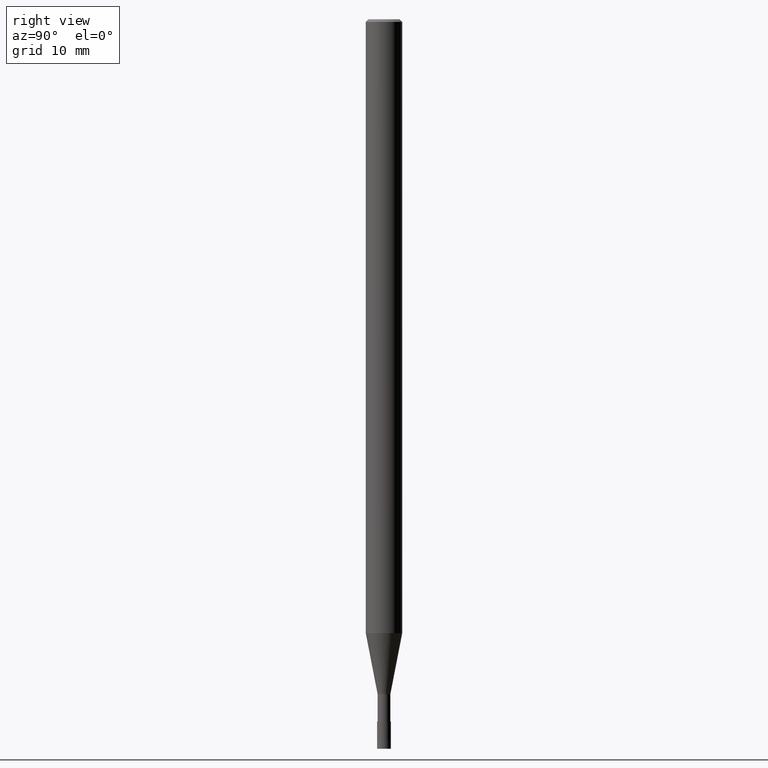
[diagram: clean part render]
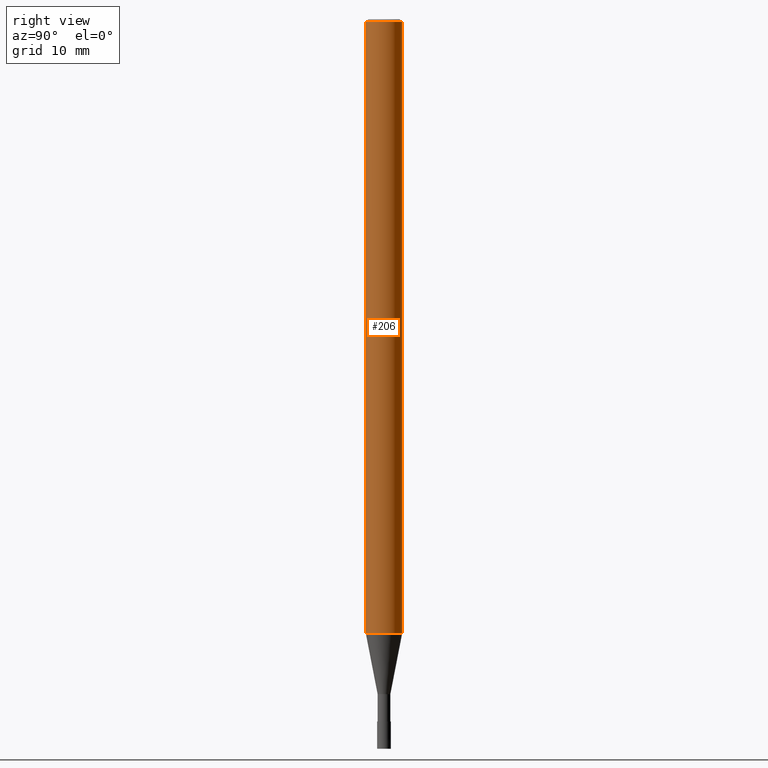
[diagram: same view with one face highlighted and labeled with its STEP entity id]
A machine part, right view. The second image highlights one B-rep face of the part: STEP entity #206.
In plain terms, the highlighted cylindrical surface (edge-blend (fillet) strip) has radius 2 mm, axis along (-0, -0, 1).
Its self-contained STEP definition (entity closure, byte-faithful):
#94=EDGE_CURVE('',#120,#158,#231,.T.);
#102=EDGE_CURVE('',#158,#130,#240,.T.);
#120=VERTEX_POINT('',#260);
#130=VERTEX_POINT('',#270);
#132=EDGE_CURVE('',#120,#164,#272,.T.);
#138=EDGE_CURVE('',#130,#164,#279,.T.);
#158=VERTEX_POINT('',#300);
#164=VERTEX_POINT('',#306);
#206=ADVANCED_FACE('',(#358),#359,.T.);
#231=LINE('',#377,#378);
#240=CIRCLE('',#391,2.0);
#260=CARTESIAN_POINT('',(0.0,2.0,-0.299999999999997));
#270=CARTESIAN_POINT('',(2.44921270764475E-016,-2.0,-67.312));
#272=CIRCLE('',#432,2.0);
#279=LINE('',#441,#442);
#300=CARTESIAN_POINT('',(0.0,2.0,-67.312));
#306=CARTESIAN_POINT('',(2.44921270764475E-016,-2.0,-0.299999999999997));
#358=FACE_OUTER_BOUND('',#538,.T.);
#359=CYLINDRICAL_SURFACE('',#539,2.0);
#377=CARTESIAN_POINT('',(-2.44921270764475E-016,2.0,-33.806));
#378=VECTOR('',#542,1.0);
#391=AXIS2_PLACEMENT_3D('',#555,#556,#557);
#432=AXIS2_PLACEMENT_3D('',#591,#592,#593);
#441=CARTESIAN_POINT('',(2.44921270764475E-016,-2.0,-33.806));
#442=VECTOR('',#605,1.0);
#538=EDGE_LOOP('',(#706,#707,#708,#709));
#539=AXIS2_PLACEMENT_3D('',#710,#711,#712);
#542=DIRECTION('',(0.0,0.0,-1.0));
#555=CARTESIAN_POINT('',(0.0,0.0,-67.312));
#556=DIRECTION('',(0.0,0.0,-1.0));
#557=DIRECTION('',(0.0,1.0,0.0));
#591=CARTESIAN_POINT('',(0.0,0.0,-0.299999999999997));
#592=DIRECTION('',(0.0,0.0,-1.0));
#593=DIRECTION('',(0.0,1.0,0.0));
#605=DIRECTION('',(-0.0,-0.0,1.0));
#706=ORIENTED_EDGE('',*,*,#94,.F.);
#707=ORIENTED_EDGE('',*,*,#132,.T.);
#708=ORIENTED_EDGE('',*,*,#138,.F.);
#709=ORIENTED_EDGE('',*,*,#102,.F.);
#710=CARTESIAN_POINT('',(0.0,0.0,-33.806));
#711=DIRECTION('',(-0.0,-0.0,1.0));
#712=DIRECTION('',(0.0,1.0,0.0));